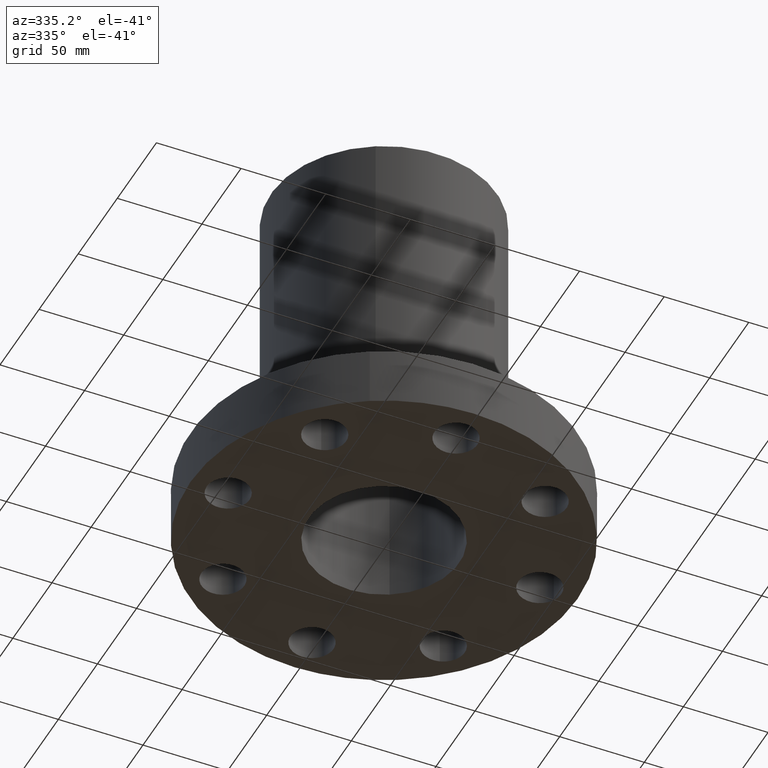
[diagram: clean part render]
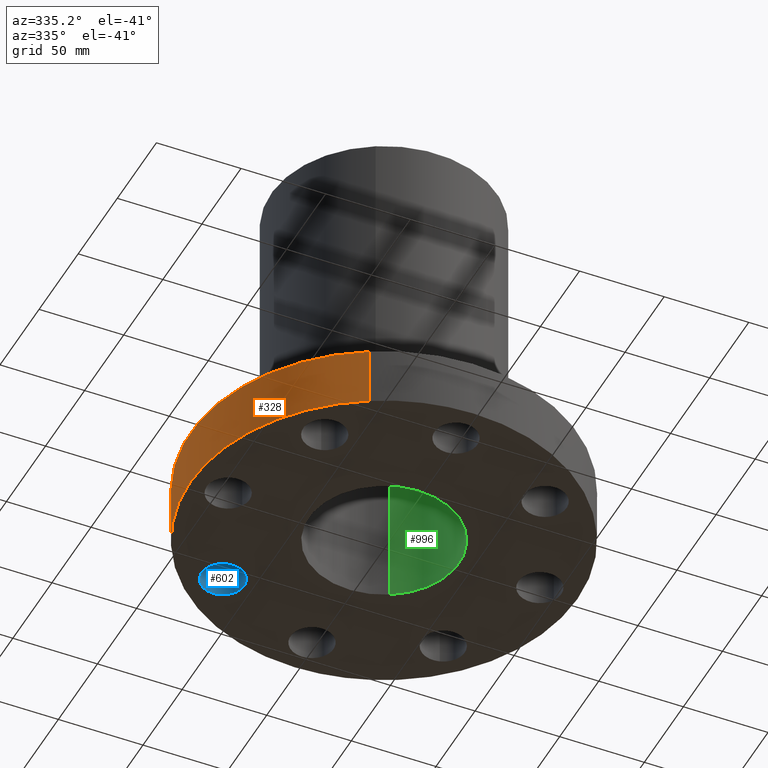
[diagram: same view with three faces highlighted in distinct colors, each labeled with its STEP entity id]
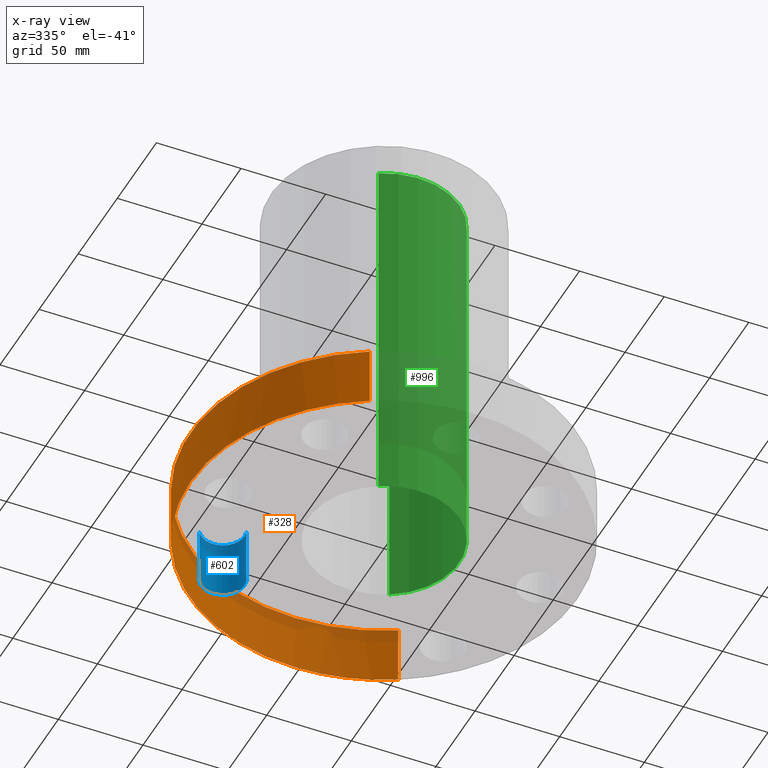
[diagram: x-ray of the same camera — body ghosted, the three highlighted faces saturated]
A machine part, auxiliary view with three faces highlighted in distinct colors.
The next image is the same camera in x-ray (body ghosted, the three faces saturated) — at least one of them is partly hidden behind the body in this view.
Their STEP definitions:

[orange] entity #328 — the highlighted cylindrical surface (partial cylindrical patch) has radius 114.3 mm, axis along (0, 0, -1).
#108=AXIS2_PLACEMENT_3D('Circle Axis2P3D',#106,#107,$) ;
#285=AXIS2_PLACEMENT_3D('Cylinder Axis2P3D',#282,#283,#284) ;
#289=AXIS2_PLACEMENT_3D('Circle Axis2P3D',#287,#288,$) ;
#298=AXIS2_PLACEMENT_3D('Circle Axis2P3D',#296,#297,$) ;
#305=AXIS2_PLACEMENT_3D('Circle Axis2P3D',#303,#304,$) ;
#101=CARTESIAN_POINT('Vertex',(2.15741492373,3.94912152852,1.38000000001)) ;
#103=CARTESIAN_POINT('Vertex',(-2.15741492373,-3.94912152852,1.38000000001)) ;
#106=CARTESIAN_POINT('Axis2P3D Location',(0.,0.,1.38000000001)) ;
#282=CARTESIAN_POINT('Axis2P3D Location',(0.,0.,4.25000000002)) ;
#287=CARTESIAN_POINT('Axis2P3D Location',(0.,0.,5.59482469102E-016)) ;
#291=CARTESIAN_POINT('Vertex',(-1.72285591452E-015,4.50000000002,0.)) ;
#293=CARTESIAN_POINT('Vertex',(2.15741492373,3.94912152852,5.59482469102E-016)) ;
#296=CARTESIAN_POINT('Axis2P3D Location',(0.,0.,5.59482469102E-016)) ;
#300=CARTESIAN_POINT('Vertex',(-4.50000000002,-2.54949250395E-015,0.)) ;
#303=CARTESIAN_POINT('Axis2P3D Location',(0.,0.,5.59482469102E-016)) ;
#307=CARTESIAN_POINT('Vertex',(-2.15741492373,-3.94912152852,5.59482469102E-016)) ;
#310=CARTESIAN_POINT('Line Origine',(-2.15741492373,-3.94912152852,0.690000000003)) ;
#315=CARTESIAN_POINT('Line Origine',(2.15741492373,3.94912152852,0.690000000003)) ;
#107=DIRECTION('Axis2P3D Direction',(0.,0.,-0.0393700787402)) ;
#283=DIRECTION('Axis2P3D Direction',(0.,0.,-0.0393700787402)) ;
#284=DIRECTION('Axis2P3D XDirection',(0.0188750212049,0.0345504945626,0.)) ;
#288=DIRECTION('Axis2P3D Direction',(0.,0.,-0.0393700787402)) ;
#297=DIRECTION('Axis2P3D Direction',(0.,0.,-0.0393700787402)) ;
#304=DIRECTION('Axis2P3D Direction',(0.,0.,-0.0393700787402)) ;
#311=DIRECTION('Vector Direction',(0.,0.,-0.0393700787402)) ;
#316=DIRECTION('Vector Direction',(0.,0.,-0.0393700787402)) ;
#312=VECTOR('Line Direction',#311,0.0393700787402) ;
#317=VECTOR('Line Direction',#316,0.0393700787402) ;
#321=ORIENTED_EDGE('',*,*,#295,.F.) ;
#322=ORIENTED_EDGE('',*,*,#302,.F.) ;
#323=ORIENTED_EDGE('',*,*,#309,.F.) ;
#324=ORIENTED_EDGE('',*,*,#314,.T.) ;
#325=ORIENTED_EDGE('',*,*,#110,.T.) ;
#326=ORIENTED_EDGE('',*,*,#319,.F.) ;
#328=ADVANCED_FACE('PartBody',(#327),#286,.T.) ;
#109=CIRCLE('generated circle',#108,4.50000000002) ;
#290=CIRCLE('generated circle',#289,4.50000000002) ;
#299=CIRCLE('generated circle',#298,4.50000000002) ;
#306=CIRCLE('generated circle',#305,4.50000000002) ;
#286=CYLINDRICAL_SURFACE('generated cylinder',#285,4.50000000002) ;
#110=EDGE_CURVE('',#104,#102,#109,.T.) ;
#295=EDGE_CURVE('',#292,#294,#290,.T.) ;
#302=EDGE_CURVE('',#301,#292,#299,.T.) ;
#309=EDGE_CURVE('',#308,#301,#306,.T.) ;
#314=EDGE_CURVE('',#308,#104,#313,.F.) ;
#319=EDGE_CURVE('',#294,#102,#318,.F.) ;
#320=EDGE_LOOP('',(#321,#322,#323,#324,#325,#326)) ;
#327=FACE_OUTER_BOUND('',#320,.T.) ;
#313=LINE('Line',#310,#312) ;
#318=LINE('Line',#315,#317) ;
#102=VERTEX_POINT('',#101) ;
#104=VERTEX_POINT('',#103) ;
#292=VERTEX_POINT('',#291) ;
#294=VERTEX_POINT('',#293) ;
#301=VERTEX_POINT('',#300) ;
#308=VERTEX_POINT('',#307) ;

[blue] entity #602 — the highlighted cylindrical surface (edge-blend (fillet) strip) has radius 12.7 mm, axis along (0, 0, 1).
#220=AXIS2_PLACEMENT_3D('Circle Axis2P3D',#218,#219,$) ;
#575=AXIS2_PLACEMENT_3D('Cylinder Axis2P3D',#572,#573,#574) ;
#593=AXIS2_PLACEMENT_3D('Circle Axis2P3D',#591,#592,$) ;
#213=CARTESIAN_POINT('Vertex',(-2.08348726682,2.42249231624,1.38000000001)) ;
#215=CARTESIAN_POINT('Vertex',(-3.04303689681,2.70403184738,1.38000000001)) ;
#218=CARTESIAN_POINT('Axis2P3D Location',(-2.56326208181,2.56326208181,1.38000000001)) ;
#572=CARTESIAN_POINT('Axis2P3D Location',(-2.56326208181,2.56326208181,0.00393700787402)) ;
#577=CARTESIAN_POINT('Line Origine',(-2.08348726682,2.42249231624,0.690000000003)) ;
#581=CARTESIAN_POINT('Vertex',(-2.08348726682,2.42249231624,2.2401153548E-016)) ;
#584=CARTESIAN_POINT('Line Origine',(-3.04303689681,2.70403184738,0.690000000003)) ;
#588=CARTESIAN_POINT('Vertex',(-3.04303689681,2.70403184738,2.2401153548E-016)) ;
#591=CARTESIAN_POINT('Axis2P3D Location',(-2.56326208181,2.56326208181,0.)) ;
#219=DIRECTION('Axis2P3D Direction',(0.,0.,-0.0393700787402)) ;
#573=DIRECTION('Axis2P3D Direction',(0.,0.,0.0393700787402)) ;
#574=DIRECTION('Axis2P3D XDirection',(-0.0377775444876,0.0110842335096,0.)) ;
#578=DIRECTION('Vector Direction',(0.,0.,0.0393700787402)) ;
#585=DIRECTION('Vector Direction',(0.,0.,0.0393700787402)) ;
#592=DIRECTION('Axis2P3D Direction',(0.,0.,0.0393700787402)) ;
#579=VECTOR('Line Direction',#578,0.0393700787402) ;
#586=VECTOR('Line Direction',#585,0.0393700787402) ;
#597=ORIENTED_EDGE('',*,*,#583,.F.) ;
#598=ORIENTED_EDGE('',*,*,#222,.F.) ;
#599=ORIENTED_EDGE('',*,*,#590,.T.) ;
#600=ORIENTED_EDGE('',*,*,#595,.T.) ;
#602=ADVANCED_FACE('PartBody',(#601),#576,.F.) ;
#221=CIRCLE('generated circle',#220,0.500000000002) ;
#594=CIRCLE('generated circle',#593,0.500000000002) ;
#576=CYLINDRICAL_SURFACE('generated cylinder',#575,0.500000000002) ;
#222=EDGE_CURVE('',#216,#214,#221,.T.) ;
#583=EDGE_CURVE('',#214,#582,#580,.F.) ;
#590=EDGE_CURVE('',#216,#589,#587,.F.) ;
#595=EDGE_CURVE('',#589,#582,#594,.F.) ;
#596=EDGE_LOOP('',(#597,#598,#599,#600)) ;
#601=FACE_OUTER_BOUND('',#596,.T.) ;
#580=LINE('Line',#577,#579) ;
#587=LINE('Line',#584,#586) ;
#214=VERTEX_POINT('',#213) ;
#216=VERTEX_POINT('',#215) ;
#582=VERTEX_POINT('',#581) ;
#589=VERTEX_POINT('',#588) ;

[green] entity #996 — the highlighted cylindrical surface (partial cylindrical patch) has radius 44.45 mm, axis along (0, 0, -1).
#779=AXIS2_PLACEMENT_3D('Circle Axis2P3D',#777,#778,$) ;
#969=AXIS2_PLACEMENT_3D('Cylinder Axis2P3D',#966,#967,#968) ;
#973=AXIS2_PLACEMENT_3D('Circle Axis2P3D',#971,#972,$) ;
#772=CARTESIAN_POINT('Vertex',(-0.838994692561,-1.53576948331,8.75000000004)) ;
#774=CARTESIAN_POINT('Vertex',(0.838994692561,1.53576948331,8.75000000004)) ;
#777=CARTESIAN_POINT('Axis2P3D Location',(0.,0.,8.75000000003)) ;
#966=CARTESIAN_POINT('Axis2P3D Location',(0.,0.,4.25000000002)) ;
#971=CARTESIAN_POINT('Axis2P3D Location',(0.,0.,0.)) ;
#975=CARTESIAN_POINT('Vertex',(-0.838994692561,-1.53576948331,0.)) ;
#977=CARTESIAN_POINT('Vertex',(0.838994692561,1.53576948331,0.)) ;
#980=CARTESIAN_POINT('Line Origine',(-0.838994692561,-1.53576948331,4.37500000002)) ;
#985=CARTESIAN_POINT('Line Origine',(0.838994692561,1.53576948331,4.37500000002)) ;
#778=DIRECTION('Axis2P3D Direction',(0.,0.,-0.0393700787402)) ;
#967=DIRECTION('Axis2P3D Direction',(0.,0.,-0.0393700787402)) ;
#968=DIRECTION('Axis2P3D XDirection',(-0.0188750212049,-0.0345504945626,0.)) ;
#972=DIRECTION('Axis2P3D Direction',(0.,0.,-0.0393700787402)) ;
#981=DIRECTION('Vector Direction',(0.,0.,-0.0393700787402)) ;
#986=DIRECTION('Vector Direction',(0.,0.,-0.0393700787402)) ;
#982=VECTOR('Line Direction',#981,0.0393700787402) ;
#987=VECTOR('Line Direction',#986,0.0393700787402) ;
#991=ORIENTED_EDGE('',*,*,#979,.F.) ;
#992=ORIENTED_EDGE('',*,*,#984,.F.) ;
#993=ORIENTED_EDGE('',*,*,#781,.F.) ;
#994=ORIENTED_EDGE('',*,*,#989,.T.) ;
#996=ADVANCED_FACE('PartBody',(#995),#970,.F.) ;
#780=CIRCLE('generated circle',#779,1.75000000001) ;
#974=CIRCLE('generated circle',#973,1.75000000001) ;
#970=CYLINDRICAL_SURFACE('generated cylinder',#969,1.75000000001) ;
#781=EDGE_CURVE('',#775,#773,#780,.T.) ;
#979=EDGE_CURVE('',#976,#978,#974,.F.) ;
#984=EDGE_CURVE('',#773,#976,#983,.T.) ;
#989=EDGE_CURVE('',#775,#978,#988,.T.) ;
#990=EDGE_LOOP('',(#991,#992,#993,#994)) ;
#995=FACE_OUTER_BOUND('',#990,.T.) ;
#983=LINE('Line',#980,#982) ;
#988=LINE('Line',#985,#987) ;
#773=VERTEX_POINT('',#772) ;
#775=VERTEX_POINT('',#774) ;
#976=VERTEX_POINT('',#975) ;
#978=VERTEX_POINT('',#977) ;